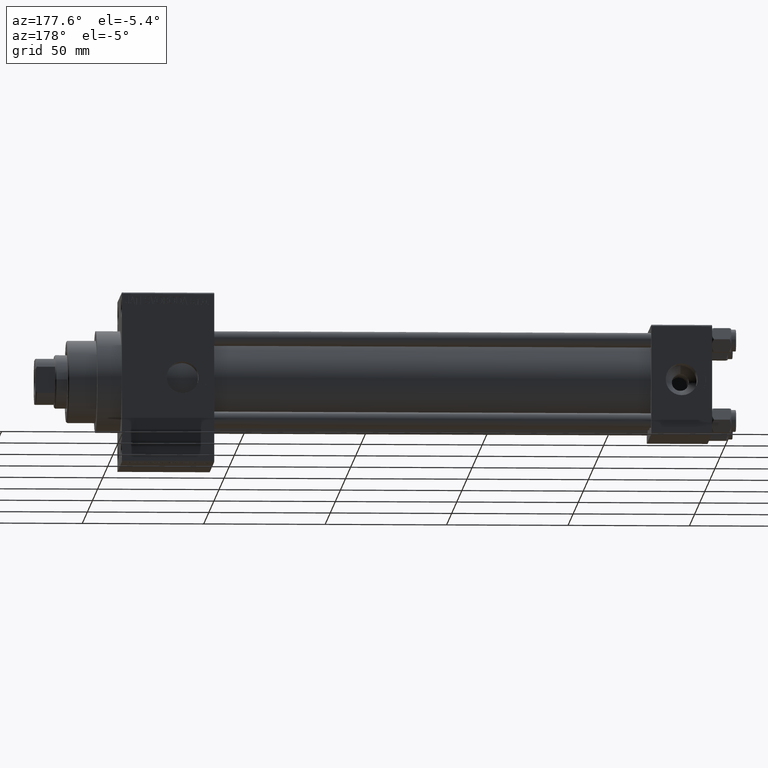
[diagram: clean part render]
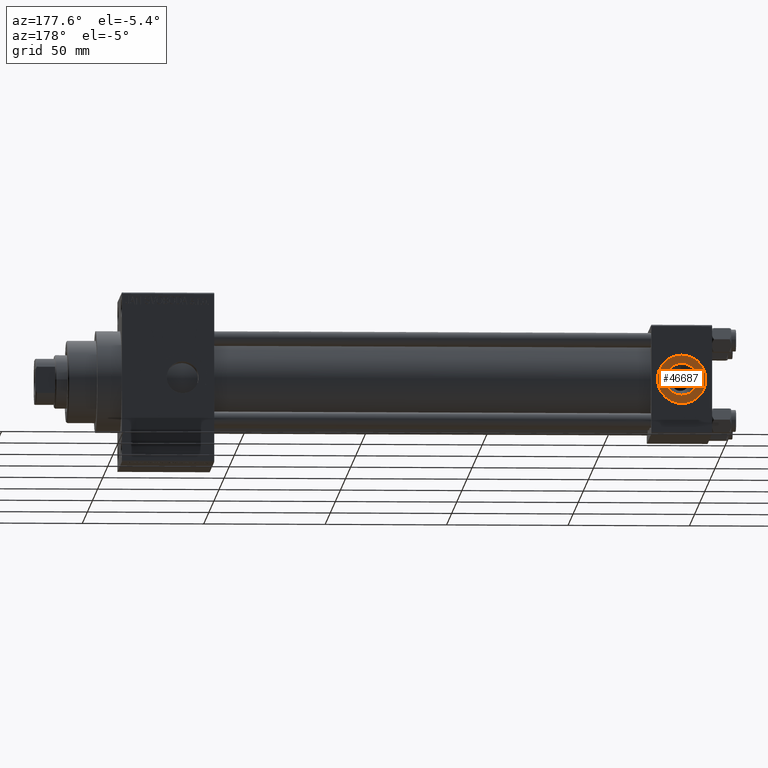
[diagram: same view with one face highlighted and labeled with its STEP entity id]
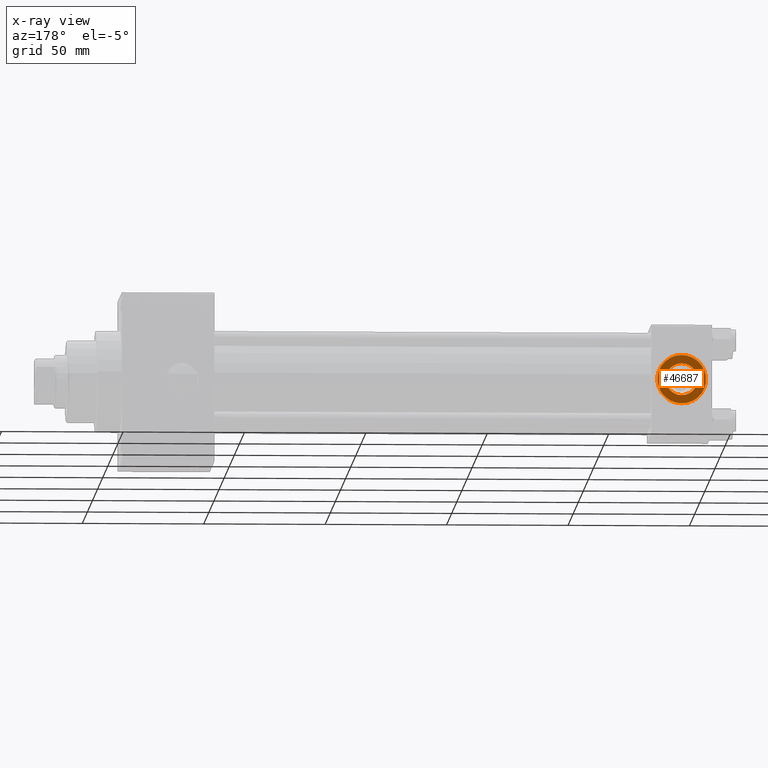
[diagram: x-ray of the same camera — body ghosted, the highlighted face saturated]
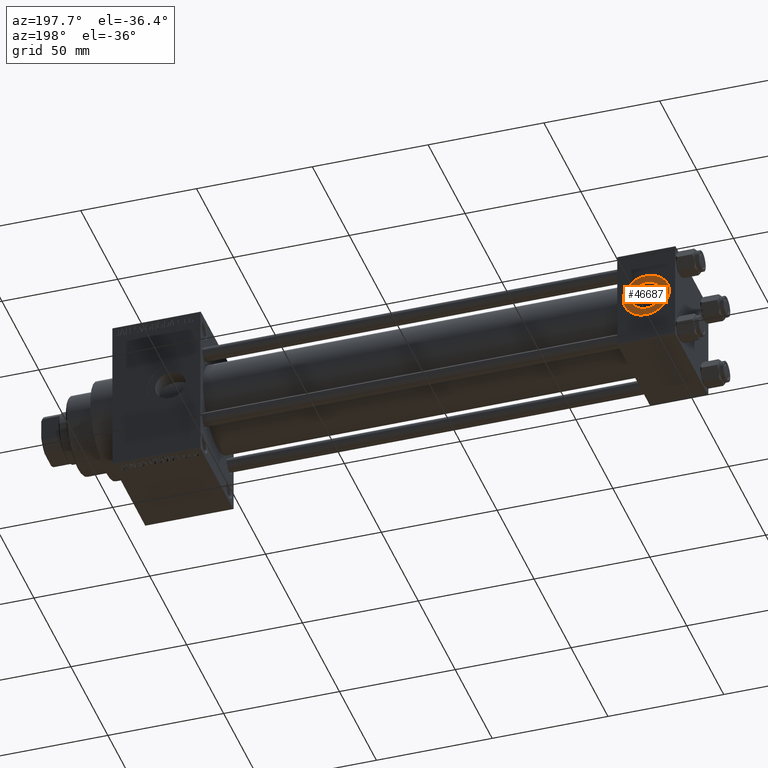
[diagram: same view with one face highlighted and labeled with its STEP entity id]
A machine part, auxiliary view. The second image highlights one B-rep face of the part: STEP entity #46687.
The next image is the same camera in x-ray: the body ghosted, the highlighted face saturated — about 0% of this face is hidden behind the body in this view.
A second angle (auxiliary view) of the same face is appended — the face is thin or edge-on in the first view.
In plain terms, the highlighted planar face has unit normal (0, 1, 0).
Its self-contained STEP definition (entity closure, byte-faithful):
#317 = VERTEX_POINT ( 'NONE', #25420 ) ;
#540 = DIRECTION ( 'NONE',  ( 0.000000000000000000, 1.000000000000000000, 0.000000000000000000 ) ) ;
#1455 = DIRECTION ( 'NONE',  ( 0.000000000000000000, 1.000000000000000000, 0.000000000000000000 ) ) ;
#2183 = CARTESIAN_POINT ( 'NONE',  ( 12.50000000000000000, 22.30000000000000071, 0.000000000000000000 ) ) ;
#3184 = FACE_BOUND ( 'NONE', #20389, .T. ) ;
#3437 = AXIS2_PLACEMENT_3D ( 'NONE', #2183, #1455, #5168 ) ;
#3493 = EDGE_CURVE ( 'NONE', #317, #43542, #45357, .T. ) ;
#4498 = AXIS2_PLACEMENT_3D ( 'NONE', #40913, #22044, #13604 ) ;
#5168 = DIRECTION ( 'NONE',  ( 0.000000000000000000, 0.000000000000000000, 1.000000000000000000 ) ) ;
#5804 = CIRCLE ( 'NONE', #3437, 6.579999999999998295 ) ;
#9713 = CARTESIAN_POINT ( 'NONE',  ( 12.50000000000000000, 22.30000000000000071, 0.000000000000000000 ) ) ;
#11193 = CIRCLE ( 'NONE', #17529, 9.999999999999996447 ) ;
#11543 = AXIS2_PLACEMENT_3D ( 'NONE', #41304, #540, #29885 ) ;
#13604 = DIRECTION ( 'NONE',  ( 0.000000000000000000, -0.000000000000000000, 1.000000000000000000 ) ) ;
#15745 = EDGE_CURVE ( 'NONE', #46233, #43362, #11193, .T. ) ;
#16297 = CARTESIAN_POINT ( 'NONE',  ( 12.50000000000000000, 22.30000000000000071, 6.579999999999998295 ) ) ;
#17529 = AXIS2_PLACEMENT_3D ( 'NONE', #46270, #23185, #42553 ) ;
#19282 = ORIENTED_EDGE ( 'NONE', *, *, #40177, .T. ) ;
#20164 = ORIENTED_EDGE ( 'NONE', *, *, #15745, .T. ) ;
#20389 = EDGE_LOOP ( 'NONE', ( #43658, #36578 ) ) ;
#22044 = DIRECTION ( 'NONE',  ( 0.000000000000000000, 1.000000000000000000, 0.000000000000000000 ) ) ;
#23185 = DIRECTION ( 'NONE',  ( 0.000000000000000000, 1.000000000000000000, 0.000000000000000000 ) ) ;
#23947 = AXIS2_PLACEMENT_3D ( 'NONE', #9713, #36026, #29074 ) ;
#24611 = CARTESIAN_POINT ( 'NONE',  ( 12.50000000000000000, 22.30000000000000071, 9.999999999999996447 ) ) ;
#25420 = CARTESIAN_POINT ( 'NONE',  ( 12.50000000000000000, 22.30000000000000071, -6.579999999999998295 ) ) ;
#29074 = DIRECTION ( 'NONE',  ( 0.000000000000000000, 0.000000000000000000, 1.000000000000000000 ) ) ;
#29885 = DIRECTION ( 'NONE',  ( 0.000000000000000000, 0.000000000000000000, 1.000000000000000000 ) ) ;
#35437 = EDGE_CURVE ( 'NONE', #43542, #317, #5804, .T. ) ;
#36026 = DIRECTION ( 'NONE',  ( 0.000000000000000000, 1.000000000000000000, 0.000000000000000000 ) ) ;
#36461 = FACE_OUTER_BOUND ( 'NONE', #46120, .T. ) ;
#36578 = ORIENTED_EDGE ( 'NONE', *, *, #3493, .F. ) ;
#36943 = PLANE ( 'NONE',  #4498 ) ;
#40177 = EDGE_CURVE ( 'NONE', #43362, #46233, #40888, .T. ) ;
#40888 = CIRCLE ( 'NONE', #11543, 9.999999999999996447 ) ;
#40913 = CARTESIAN_POINT ( 'NONE',  ( 12.50000000000000000, 22.30000000000000071, 0.000000000000000000 ) ) ;
#41304 = CARTESIAN_POINT ( 'NONE',  ( 12.50000000000000000, 22.30000000000000071, 0.000000000000000000 ) ) ;
#42553 = DIRECTION ( 'NONE',  ( 0.000000000000000000, 0.000000000000000000, 1.000000000000000000 ) ) ;
#43362 = VERTEX_POINT ( 'NONE', #24611 ) ;
#43542 = VERTEX_POINT ( 'NONE', #16297 ) ;
#43658 = ORIENTED_EDGE ( 'NONE', *, *, #35437, .F. ) ;
#45357 = CIRCLE ( 'NONE', #23947, 6.579999999999998295 ) ;
#46120 = EDGE_LOOP ( 'NONE', ( #19282, #20164 ) ) ;
#46233 = VERTEX_POINT ( 'NONE', #46741 ) ;
#46270 = CARTESIAN_POINT ( 'NONE',  ( 12.50000000000000000, 22.30000000000000071, 0.000000000000000000 ) ) ;
#46687 = ADVANCED_FACE ( 'NONE', ( #3184, #36461 ), #36943, .T. ) ;
#46741 = CARTESIAN_POINT ( 'NONE',  ( 12.50000000000000178, 22.30000000000000071, -9.999999999999996447 ) ) ;